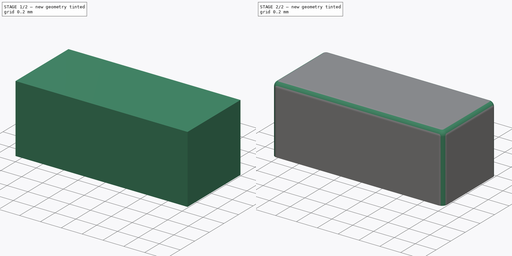
[diagram: build sequence overview — one tinted view per stage of 2, left to right]
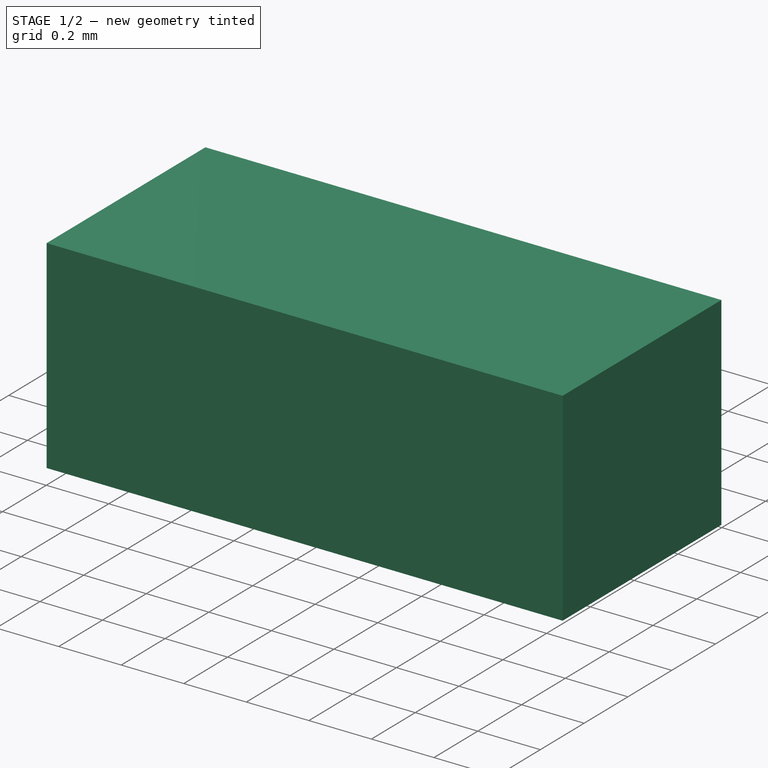
[diagram: stage 1 of 2 — iso view after this stage's code; geometry added in this stage tinted green]
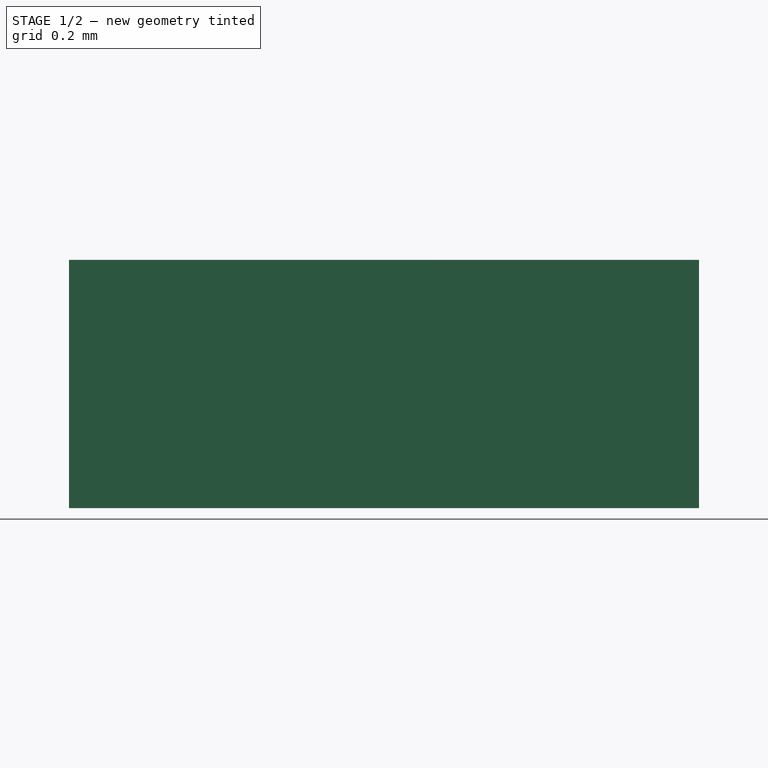
[diagram: stage 1 of 2 — front view after this stage's code; geometry added in this stage tinted green]
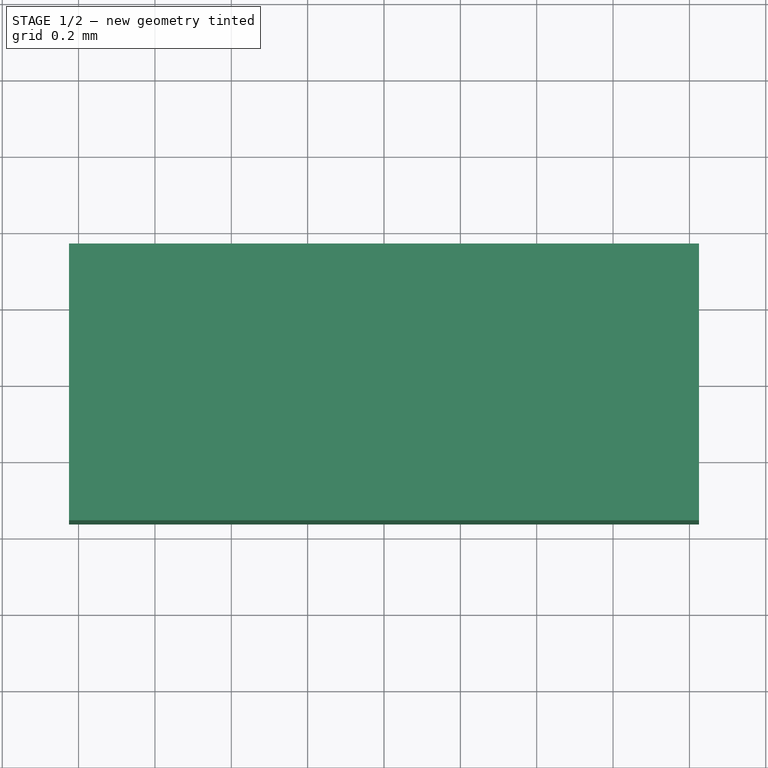
[diagram: stage 1 of 2 — top view after this stage's code; geometry added in this stage tinted green]
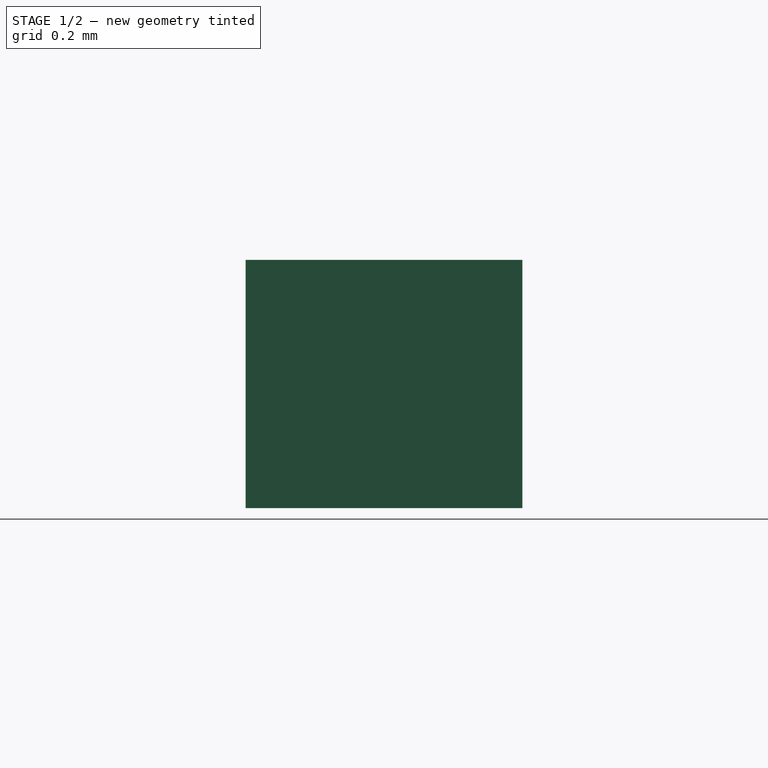
[diagram: stage 1 of 2 — right view after this stage's code; geometry added in this stage tinted green]
FCSTD DOCUMENT  (FreeCAD 0.16R6703 (Git))
Label: myled
License: All rights reserved
LicenseURL: http://en.wikipedia.org/wiki/All_rights_reserved
objects: Sketcher::SketchObject×1, PartDesign::Pad×1, Part::Fillet×1
note: 4 computed .brp shape members not serialized (recipe doc carries the construction recipe); baked Part::Feature solids carry a one-line shape summary decoded from their .brp

FEATURE [Sketcher::SketchObject] Sketch  label="body-sketch"
  sketch-geometry (4):
    g0: LineSegment StartX=-0.825 StartY=0.3625 StartZ=0 EndX=0.825 EndY=0.3625 EndZ=0
    g1: LineSegment StartX=0.825 StartY=0.3625 StartZ=0 EndX=0.825 EndY=-0.3625 EndZ=0
    g2: LineSegment StartX=0.825 StartY=-0.3625 StartZ=0 EndX=-0.825 EndY=-0.3625 EndZ=0
    g3: LineSegment StartX=-0.825 StartY=-0.3625 StartZ=0 EndX=-0.825 EndY=0.3625 EndZ=0
  constraints (11):
    c: Coincident(g0,g1)
    c: Coincident(g1,g2)
    c: Coincident(g2,g3)
    c: Coincident(g3,g0)
    c: Horizontal(g0)
    c: Horizontal(g2)
    c: Vertical(g1)
    c: Vertical(g3)
    c: Symmetric(g1,g0,g-1)
    c: DistanceX(g0,g0) = 1.65
    c: DistanceY(g1,g1) = 0.725
FEATURE [PartDesign::Pad] Pad
  Length = 0.65
  Length2 = 100
  Sketch = -> Sketch
  Type = 0
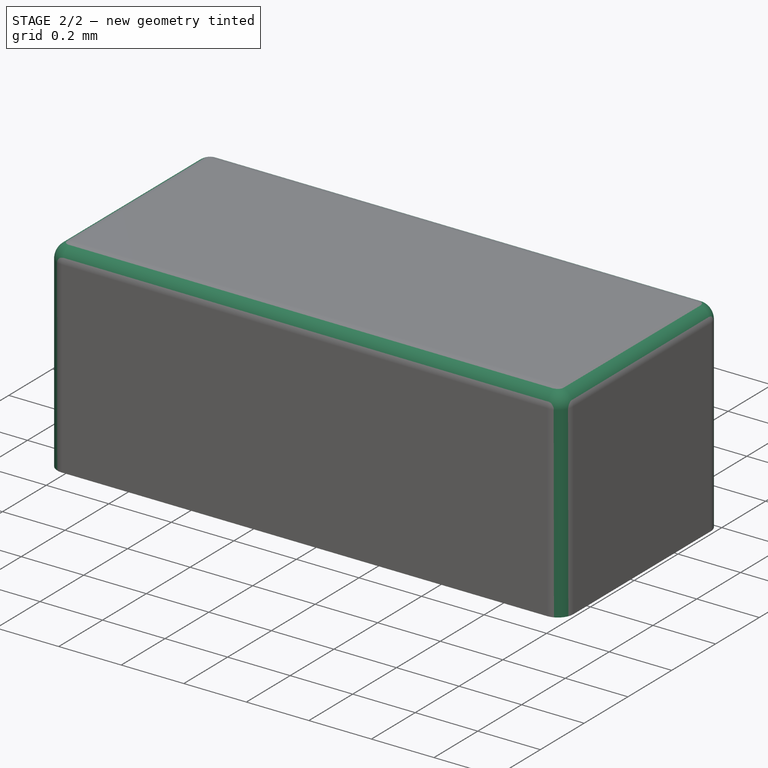
[diagram: stage 2 of 2 — iso view after this stage's code; geometry added in this stage tinted green]
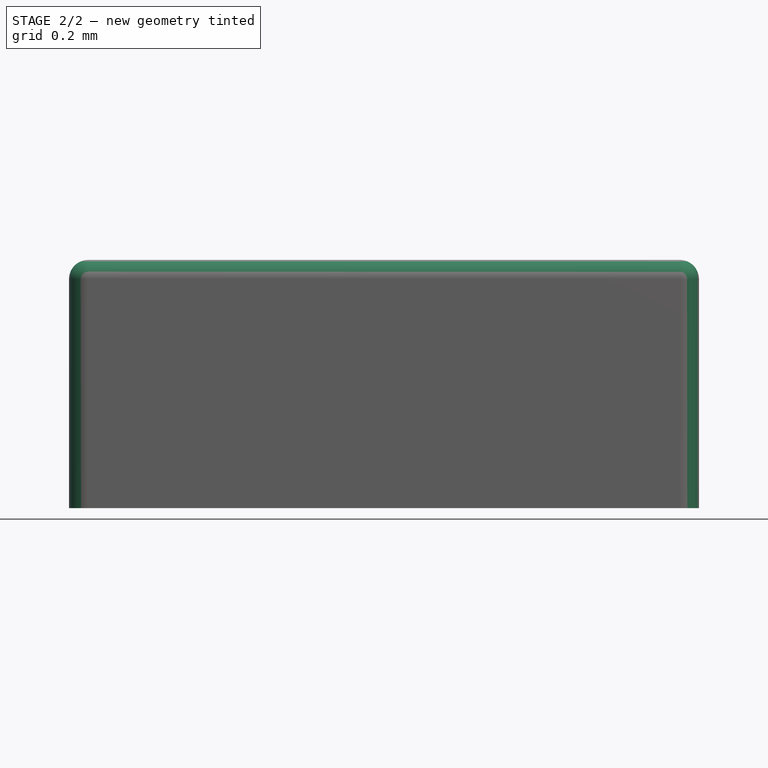
[diagram: stage 2 of 2 — front view after this stage's code; geometry added in this stage tinted green]
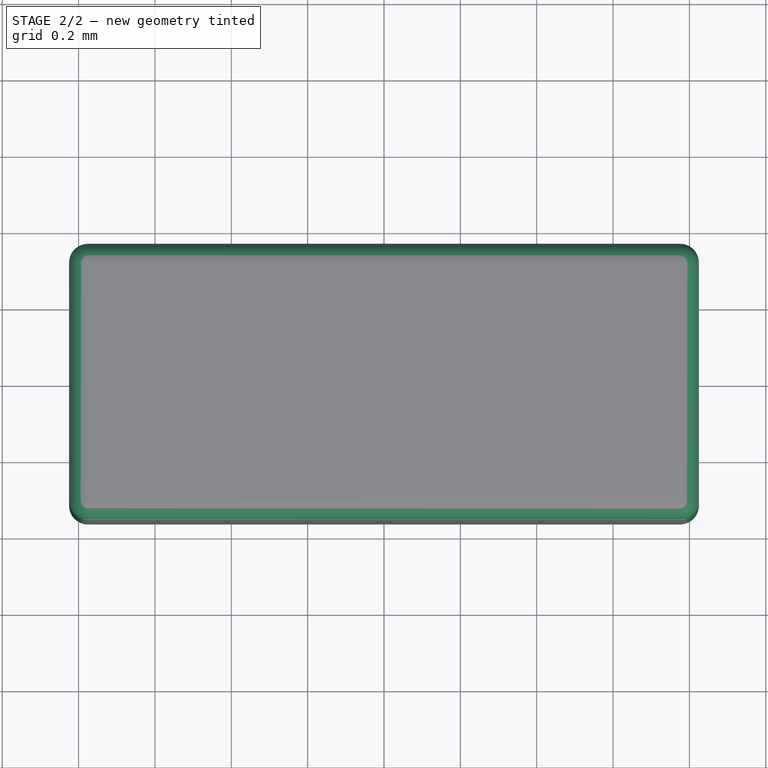
[diagram: stage 2 of 2 — top view after this stage's code; geometry added in this stage tinted green]
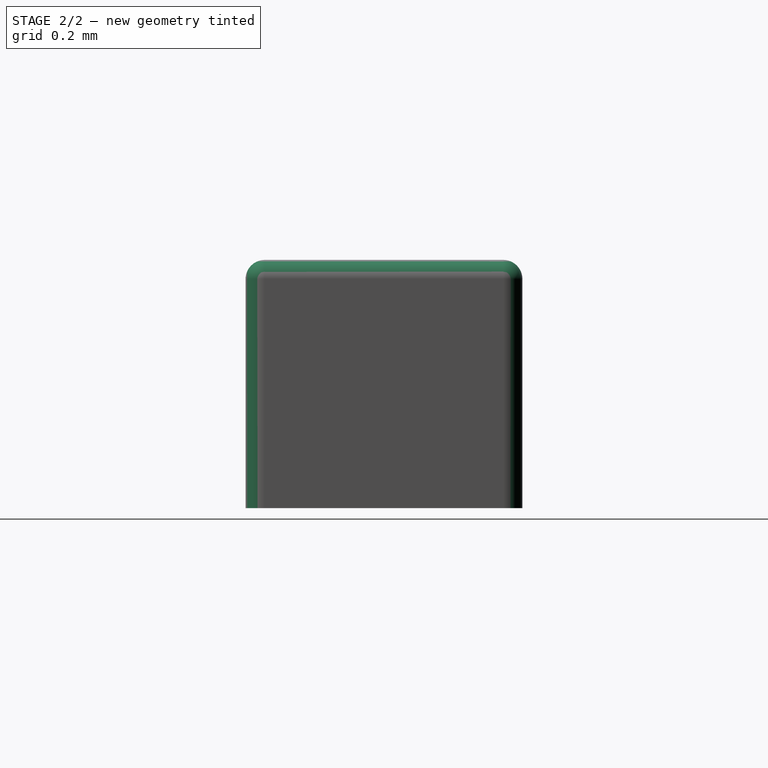
[diagram: stage 2 of 2 — right view after this stage's code; geometry added in this stage tinted green]
FEATURE [Part::Fillet] Fillet  label="myled"
  Base = -> Pad
  Edges = 8 edges r=0.05: [Edge1,Edge2,Edge4,Edge5,Edge7,Edge8,Edge10,Edge12]
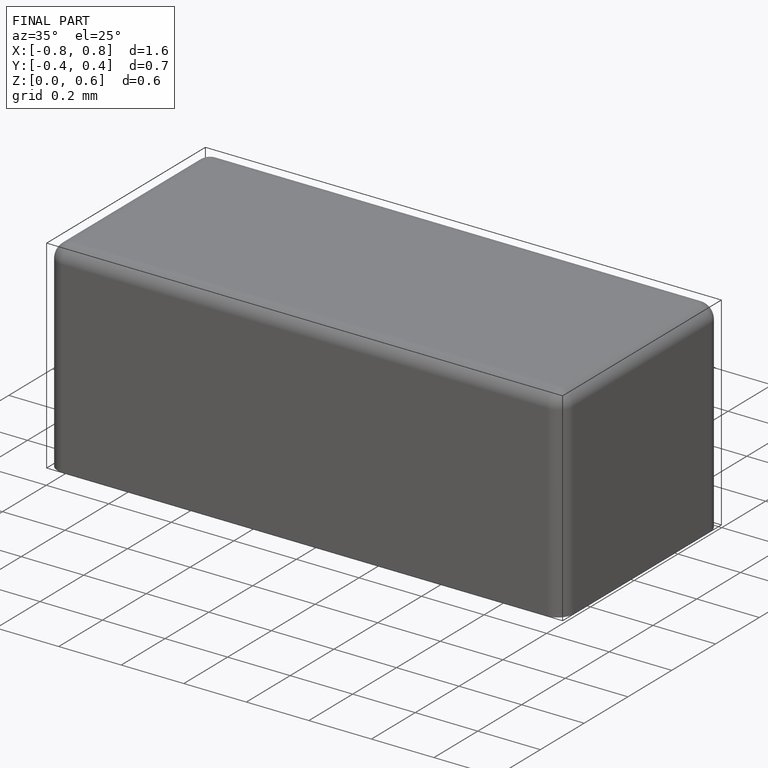
[diagram: finished part — iso view with bounding-box wireframe]
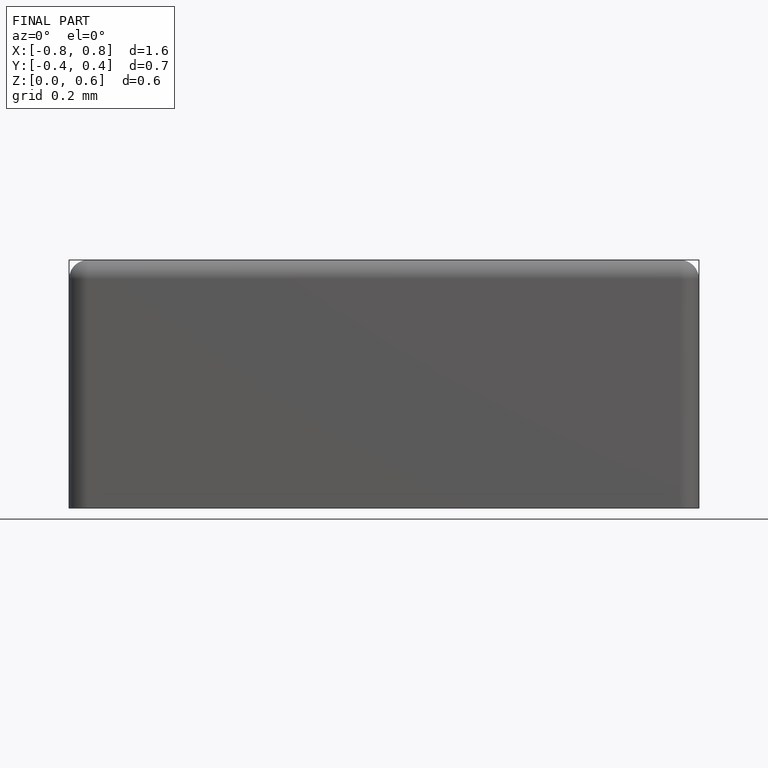
[diagram: finished part — front view with bounding-box wireframe]
